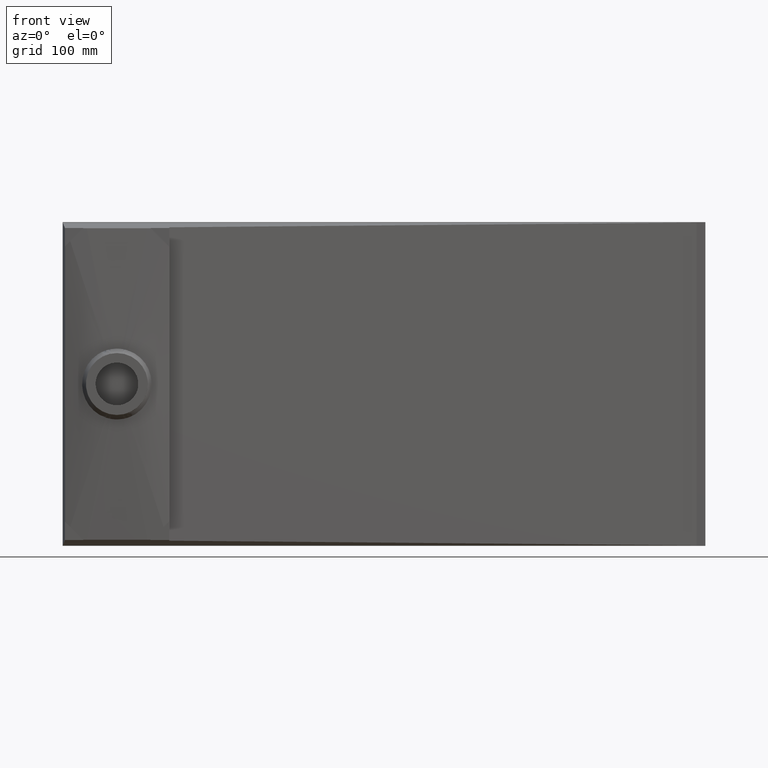
[diagram: clean part render]
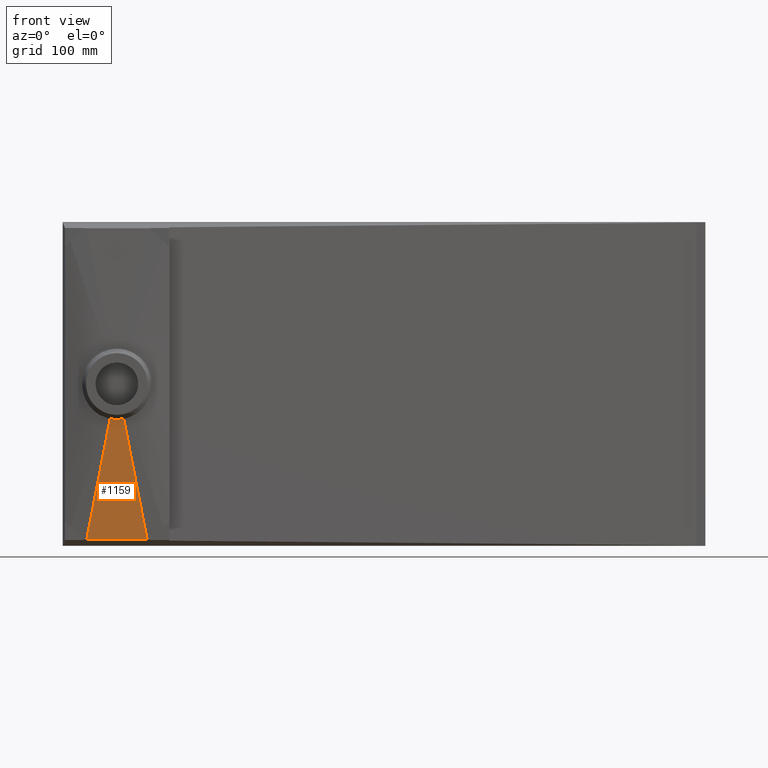
[diagram: same view with one face highlighted and labeled with its STEP entity id]
A machine part, front view. The second image highlights one B-rep face of the part: STEP entity #1159.
In plain terms, the highlighted face is a freeform B-spline surface patch.
Its self-contained STEP definition (entity closure, byte-faithful):
#31 = VERTEX_POINT ( 'NONE', #5527 ) ;
#86 = CARTESIAN_POINT ( 'NONE',  ( 58.27242842044989900, -120.6869095801091600, -217.1680085877463900 ) ) ;
#90 = ORIENTED_EDGE ( 'NONE', *, *, #1474, .T. ) ;
#139 = CARTESIAN_POINT ( 'NONE',  ( 60.39061343607895100, -120.2838554742528700, -227.8837113006445600 ) ) ;
#165 = CARTESIAN_POINT ( 'NONE',  ( 62.50879845170801000, -119.8808013683965800, -238.5994140135427400 ) ) ;
#179 = CARTESIAN_POINT ( 'NONE',  ( 64.62880069256485200, -119.4777557249144700, -249.3147570761731500 ) ) ;
#207 = CARTESIAN_POINT ( 'NONE',  ( 66.74929581478254200, -119.0747133391754200, -260.0300026279833800 ) ) ;
#278 = FACE_OUTER_BOUND ( 'NONE', #1535, .T. ) ;
#305 = CARTESIAN_POINT ( 'NONE',  ( 70.99028605921793700, -118.2686285676973300, -281.4604937316038300 ) ) ;
#325 = CARTESIAN_POINT ( 'NONE',  ( 75.23342660546524000, -117.4625567152831700, -302.8905593744715400 ) ) ;
#354 = CARTESIAN_POINT ( 'NONE',  ( 79.47690451052945100, -116.6564876518917100, -324.3205582958725000 ) ) ;
#387 = CARTESIAN_POINT ( 'NONE',  ( 53.46918231261663800, -121.4930233680558700, -195.7975546323019700 ) ) ;
#412 = CARTESIAN_POINT ( 'NONE',  ( 55.39868619076918300, -121.0899522341513700, -206.5096290073102000 ) ) ;
#460 = B_SPLINE_CURVE_WITH_KNOTS ( 'NONE', 3,
 ( #7109, #1068, #1274, #1338, #1353, #1398, #1441, #1537 ),
 .UNSPECIFIED., .F., .F.,
 ( 4, 2, 2, 4 ),
 ( 2.860979249076398400E-017, 0.03237025230404994700, 0.06474050460809986600, 0.1294810092161997100 ),
 .UNSPECIFIED. ) ;
#500 = CARTESIAN_POINT ( 'NONE',  ( 57.33896868213641800, -120.6868904350241500, -217.2197450914810900 ) ) ;
#531 = CARTESIAN_POINT ( 'NONE',  ( 59.27964585364685500, -120.2838388825114700, -227.9297899783361200 ) ) ;
#556 = CARTESIAN_POINT ( 'NONE',  ( 61.22032302515727800, -119.8807873299987800, -238.6398348651911800 ) ) ;
#576 = B_SPLINE_CURVE_WITH_KNOTS ( 'NONE', 3,
 ( #4670, #4686, #4623, #4596 ),
 .UNSPECIFIED., .F., .F.,
 ( 4, 4 ),
 ( 3.469446951953614200E-017, 6.752364699352624800E-006 ),
 .UNSPECIFIED. ) ;
#582 = CARTESIAN_POINT ( 'NONE',  ( 63.16282262938038600, -119.4777431748528300, -249.3495489463336400 ) ) ;
#617 = CARTESIAN_POINT ( 'NONE',  ( 33.75334957122907300, -119.4777108936608600, -249.4083271083769900 ) ) ;
#636 = EDGE_CURVE ( 'NONE', #3623, #3387, #2864, .T. ) ;
#639 = CARTESIAN_POINT ( 'NONE',  ( 65.10581571659038500, -119.0747019822173100, -260.0591735004764500 ) ) ;
#690 = CARTESIAN_POINT ( 'NONE',  ( 32.16195273734442100, -119.0746740831565500, -260.1084321711685400 ) ) ;
#746 = CARTESIAN_POINT ( 'NONE',  ( 28.97915906957512500, -118.2686004621479600, -281.5086422967515900 ) ) ;
#804 = CARTESIAN_POINT ( 'NONE',  ( 68.99180189101036800, -118.2686195969462700, -281.4784226087621200 ) ) ;
#814 = CARTESIAN_POINT ( 'NONE',  ( 39.88850133673389600, -121.4643722782131800, -196.5059985455536700 ) ) ;
#838 = CARTESIAN_POINT ( 'NONE',  ( 72.87994208160381500, -117.4625488497863700, -302.8972808718407400 ) ) ;
#893 = CARTESIAN_POINT ( 'NONE',  ( 76.76841957174504200, -116.6564806835065600, -324.3160779711716400 ) ) ;
#971 = CARTESIAN_POINT ( 'NONE',  ( 52.88346048968946200, -121.4929772734469500, -195.8566843599673700 ) ) ;
#1068 = CARTESIAN_POINT ( 'NONE',  ( 37.82813601438690700, -121.0662600955545500, -207.0901806747899300 ) ) ;
#1084 = CARTESIAN_POINT ( 'NONE',  ( 54.63781055011708800, -121.0899126356505200, -206.5629852874474200 ) ) ;
#1140 = CARTESIAN_POINT ( 'NONE',  ( 56.40140317816419500, -120.6868583417548300, -217.2677749597134200 ) ) ;
#1159 = ADVANCED_FACE ( 'NONE', ( #278 ), #7212, .T. ) ;
#1207 = CARTESIAN_POINT ( 'NONE',  ( 58.16533330598404900, -120.2838115929658500, -227.9725097550519000 ) ) ;
#1263 = CARTESIAN_POINT ( 'NONE',  ( 59.92926343380390400, -119.8807648441768700, -238.6772445503903800 ) ) ;
#1274 = CARTESIAN_POINT ( 'NONE',  ( 35.77291574628654300, -120.6681289335231400, -217.6752400600313700 ) ) ;
#1291 = CARTESIAN_POINT ( 'NONE',  ( 61.69475573656411900, -119.4777240538014400, -249.3817240947630900 ) ) ;
#1310 = VERTEX_POINT ( 'NONE', #2291 ) ;
#1328 = CARTESIAN_POINT ( 'NONE',  ( 63.46067096183616500, -119.0746855704200400, -260.0861345656563200 ) ) ;
#1338 = CARTESIAN_POINT ( 'NONE',  ( 31.66410445847867500, -119.8717980102496600, -238.8456729744937900 ) ) ;
#1353 = CARTESIAN_POINT ( 'NONE',  ( 29.61191646178065900, -119.4736051915596000, -249.4313193728107200 ) ) ;
#1363 = CARTESIAN_POINT ( 'NONE',  ( 66.99250141238025000, -118.2686086036572600, -281.4949555074428000 ) ) ;
#1390 = CARTESIAN_POINT ( 'NONE',  ( 70.52617800636404900, -117.4625407718825600, -302.9034748891813800 ) ) ;
#1398 = CARTESIAN_POINT ( 'NONE',  ( 23.45727829300818700, -118.2789937102462400, -281.1886293396976800 ) ) ;
#1417 = CARTESIAN_POINT ( 'NONE',  ( 74.06014362213800000, -116.6564749186180200, -324.3119470839110400 ) ) ;
#1441 = CARTESIAN_POINT ( 'NONE',  ( 19.35693306919069200, -117.4825426958536100, -302.3607000436348400 ) ) ;
#1446 = CARTESIAN_POINT ( 'NONE',  ( 52.29797629231845200, -121.4929446401845800, -195.9060359901318100 ) ) ;
#1474 = EDGE_CURVE ( 'NONE', #31, #1310, #460, .T. ) ;
#1475 = CARTESIAN_POINT ( 'NONE',  ( 53.87643901233170900, -121.0898863080052200, -206.6076318589539100 ) ) ;
#1520 = CARTESIAN_POINT ( 'NONE',  ( 55.46325481168835800, -120.6868365421940300, -217.3079864324681400 ) ) ;
#1535 = EDGE_LOOP ( 'NONE', ( #7019, #5279, #90, #3246, #6272, #5126 ) ) ;
#1537 = CARTESIAN_POINT ( 'NONE',  ( 15.25705177152247800, -116.6860818408072300, -323.5328601073550800 ) ) ;
#1544 = CARTESIAN_POINT ( 'NONE',  ( 57.05037333413590500, -120.2837929642676000, -228.0082962417112600 ) ) ;
#1586 = CARTESIAN_POINT ( 'NONE',  ( 64.99275279681720000, -118.2686003460760000, -281.5088374291603900 ) ) ;
#1615 = CARTESIAN_POINT ( 'NONE',  ( 68.17224029823020700, -117.4625342732194800, -302.9086774036987300 ) ) ;
#1643 = CARTESIAN_POINT ( 'NONE',  ( 71.35198847812742400, -116.6564698228723200, -324.3084786915947000 ) ) ;
#1676 = CARTESIAN_POINT ( 'NONE',  ( 51.71249209494743600, -121.4929120069222100, -195.9553876202962800 ) ) ;
#1699 = CARTESIAN_POINT ( 'NONE',  ( 53.11506747454633600, -121.0898599803599300, -206.6522784304604000 ) ) ;
#1725 = CARTESIAN_POINT ( 'NONE',  ( 54.52510644521252200, -120.6868147426332300, -217.3481979052228900 ) ) ;
#1768 = EDGE_CURVE ( 'NONE', #3387, #7582, #7450, .T. ) ;
#1778 = CARTESIAN_POINT ( 'NONE',  ( 55.93541336228776800, -120.2837743355693800, -228.0440827283706300 ) ) ;
#1803 = CARTESIAN_POINT ( 'NONE',  ( 57.34572027936300700, -119.8807339285055100, -238.7399675515183600 ) ) ;
#1835 = CARTESIAN_POINT ( 'NONE',  ( 58.75728599417231400, -119.4776973582796300, -249.4356886797181400 ) ) ;
#1845 = CARTESIAN_POINT ( 'NONE',  ( 78.74294822847747400, -116.6860818408072300, -323.5328601073550200 ) ) ;
#1870 = CARTESIAN_POINT ( 'NONE',  ( 60.16919205653292100, -119.0746622683513200, -260.1313655701047200 ) ) ;
#1944 = CARTESIAN_POINT ( 'NONE',  ( 62.99300418125414300, -118.2685920884947400, -281.5227193508779900 ) ) ;
#1968 = CARTESIAN_POINT ( 'NONE',  ( 65.81830259009638000, -117.4625277745564100, -302.9138799182161400 ) ) ;
#1996 = CARTESIAN_POINT ( 'NONE',  ( 68.64383333411683500, -116.6564647271266300, -324.3050102992783100 ) ) ;
#2024 = CARTESIAN_POINT ( 'NONE',  ( 51.12520646016135100, -121.4928844328330800, -195.9966864220814400 ) ) ;
#2053 = CARTESIAN_POINT ( 'NONE',  ( 52.35207164376046100, -121.0898377979046500, -206.6896375406776900 ) ) ;
#2072 = CARTESIAN_POINT ( 'NONE',  ( 53.58549500429146000, -120.6867963801942000, -217.3818457121912800 ) ) ;
#2123 = CARTESIAN_POINT ( 'NONE',  ( 54.81915215017289700, -120.2837586537141600, -228.0740275481337300 ) ) ;
#2151 = CARTESIAN_POINT ( 'NONE',  ( 56.05280929605433500, -119.8807209272341200, -238.7662093840761800 ) ) ;
#2160 = CARTESIAN_POINT ( 'NONE',  ( 57.28757156276761700, -119.4776861362850700, -249.4582661131021000 ) ) ;
#2179 = CARTESIAN_POINT ( 'NONE',  ( 58.52263246739284600, -119.0746524768002000, -260.1502890487248600 ) ) ;
#2243 = CARTESIAN_POINT ( 'NONE',  ( 60.99275427664329600, -118.2685851578304700, -281.5343349199703200 ) ) ;
#2268 = CARTESIAN_POINT ( 'NONE',  ( 63.46418044103974400, -117.4625223233588000, -302.9182331729811000 ) ) ;
#2291 = CARTESIAN_POINT ( 'NONE',  ( 15.25705177152247800, -116.6860818408072300, -323.5328601073550800 ) ) ;
#2294 = CARTESIAN_POINT ( 'NONE',  ( 65.93581037616472400, -116.6564604562592300, -324.3021083759063600 ) ) ;
#2352 = CARTESIAN_POINT ( 'NONE',  ( 50.53670691566245000, -121.4928622219819400, -196.0298124054992600 ) ) ;
#2407 = CARTESIAN_POINT ( 'NONE',  ( 51.58798400992554900, -121.0898199472278200, -206.7196025162605500 ) ) ;
#2480 = CARTESIAN_POINT ( 'NONE',  ( 54.04757892414527000, -121.4930543155841500, -195.7343224683213500 ) ) ;
#2513 = CARTESIAN_POINT ( 'NONE',  ( 56.15464419814297500, -121.0899741731473700, -206.4522268773936300 ) ) ;
#2537 = CARTESIAN_POINT ( 'NONE',  ( 52.64490056062747700, -120.6867816061315300, -217.4088338667653500 ) ) ;
#2562 = CARTESIAN_POINT ( 'NONE',  ( 53.70201712908001200, -120.2837460396350500, -228.0980454987640700 ) ) ;
#2664 = CARTESIAN_POINT ( 'NONE',  ( 54.75913369753255500, -119.8807104731385600, -238.7872571307627500 ) ) ;
#2691 = CARTESIAN_POINT ( 'NONE',  ( 55.81719997661460300, -119.4776771146210300, -249.4763747232162000 ) ) ;
#2800 = CARTESIAN_POINT ( 'NONE',  ( 56.87552279918374200, -119.0746446066391100, -260.1654669225308100 ) ) ;
#2846 = CARTESIAN_POINT ( 'NONE',  ( 58.99216844432201900, -118.2685795906752600, -281.5436513211599800 ) ) ;
#2864 = B_SPLINE_CURVE_WITH_KNOTS ( 'NONE', 3,
 ( #4321, #4741, #4295, #4277 ),
 .UNSPECIFIED., .F., .F.,
 ( 4, 4 ),
 ( 1.347289491009623300E-016, 5.597194698282978900E-006 ),
 .UNSPECIFIED. ) ;
#2871 = CARTESIAN_POINT ( 'NONE',  ( 61.10993472190813900, -117.4625179461608400, -302.9217247845953100 ) ) ;
#2965 = CARTESIAN_POINT ( 'NONE',  ( 63.22787599145855400, -116.6564570285034800, -324.2997809325403900 ) ) ;
#3015 = CARTESIAN_POINT ( 'NONE',  ( 49.35970782666463900, -121.4928178002796500, -196.0960643723348900 ) ) ;
#3046 = CARTESIAN_POINT ( 'NONE',  ( 50.05980874225571900, -121.0897842458741600, -206.7795324674262900 ) ) ;
#3076 = CARTESIAN_POINT ( 'NONE',  ( 50.76371167329949700, -120.6867520580061800, -217.4628101759134900 ) ) ;
#3106 = CARTESIAN_POINT ( 'NONE',  ( 51.46774708689424200, -120.2837208114768000, -228.1460814000247400 ) ) ;
#3165 = CARTESIAN_POINT ( 'NONE',  ( 52.17178250048898700, -119.8806895649474200, -238.8293526241359900 ) ) ;
#3246 = ORIENTED_EDGE ( 'NONE', *, *, #6769, .T. ) ;
#3272 = CARTESIAN_POINT ( 'NONE',  ( 52.87645680430857500, -119.4776590712929500, -249.5125919434444500 ) ) ;
#3327 = CARTESIAN_POINT ( 'NONE',  ( 53.58130346276554000, -119.0746288663169100, -260.1958226701427200 ) ) ;
#3358 = CARTESIAN_POINT ( 'NONE',  ( 54.99099677967947000, -118.2685684563648300, -281.5622841235393100 ) ) ;
#3387 = VERTEX_POINT ( 'NONE', #5823 ) ;
#3419 = CARTESIAN_POINT ( 'NONE',  ( 56.40144328364493700, -117.4625091917649400, -302.9287080078237900 ) ) ;
#3476 = CARTESIAN_POINT ( 'NONE',  ( 57.81200722204623300, -116.6564501729920100, -324.2951260458083300 ) ) ;
#3541 = CARTESIAN_POINT ( 'NONE',  ( 48.17785171695520300, -121.4927949300696200, -196.1296236645968300 ) ) ;
#3585 = CARTESIAN_POINT ( 'NONE',  ( 48.52726556934011600, -121.0897659170112200, -206.8098852803624900 ) ) ;
#3607 = CARTESIAN_POINT ( 'NONE',  ( 48.87859015814729000, -120.6867369008836400, -217.4901473408025900 ) ) ;
#3623 = VERTEX_POINT ( 'NONE', #7970 ) ;
#3632 = CARTESIAN_POINT ( 'NONE',  ( 49.22998132133327000, -120.2837078825417600, -228.1704094166567000 ) ) ;
#3657 = CARTESIAN_POINT ( 'NONE',  ( 49.58137248451925700, -119.8806788641998800, -238.8506714925108000 ) ) ;
#3713 = CARTESIAN_POINT ( 'NONE',  ( 49.93308472449462700, -119.4776498441073900, -249.5309336430407000 ) ) ;
#3767 = CARTESIAN_POINT ( 'NONE',  ( 52.39649277419489700, -116.6564466928091300, -324.2927690274532900 ) ) ;
#3791 = CARTESIAN_POINT ( 'NONE',  ( 46.99584944306931800, -121.4927949834252100, -196.1295449269937900 ) ) ;
#3845 = CARTESIAN_POINT ( 'NONE',  ( 46.99461816613145300, -121.0897659598751400, -206.8098140637878300 ) ) ;
#3949 = CARTESIAN_POINT ( 'NONE',  ( 46.99338015596517000, -120.6867369363304800, -217.4900831997997300 ) ) ;
#4007 = CARTESIAN_POINT ( 'NONE',  ( 46.99214191119769200, -120.2837079127896800, -228.1703523357845700 ) ) ;
#4039 = CARTESIAN_POINT ( 'NONE',  ( 46.99090366643021400, -119.8806788892488800, -238.8506214717693900 ) ) ;
#4078 = CARTESIAN_POINT ( 'NONE',  ( 46.98966429022269200, -119.4776498657111600, -249.5308906076228900 ) ) ;
#4172 = CARTESIAN_POINT ( 'NONE',  ( 46.98842460878542200, -119.0746208421746400, -260.2111597434409300 ) ) ;
#4267 = CARTESIAN_POINT ( 'NONE',  ( 46.98594524591089800, -118.2685627951015900, -281.5716980150770000 ) ) ;
#4277 = CARTESIAN_POINT ( 'NONE',  ( 54.11036860234494800, -121.4643678225196200, -196.5062379612435000 ) ) ;
#4295 = CARTESIAN_POINT ( 'NONE',  ( 54.10854375427030800, -121.4643605626115700, -196.5066263310084200 ) ) ;
#4321 = CARTESIAN_POINT ( 'NONE',  ( 54.10489396846166000, -121.4643460582107100, -196.5074026494639300 ) ) ;
#4322 = CARTESIAN_POINT ( 'NONE',  ( 46.98346454918560500, -117.4625047480332300, -302.9322362865583500 ) ) ;
#4376 = CARTESIAN_POINT ( 'NONE',  ( 46.98098364449117500, -116.6564467009658900, -324.2927745580155900 ) ) ;
#4400 = CARTESIAN_POINT ( 'NONE',  ( 45.81384716918342500, -121.4927950367808200, -196.1294661893907400 ) ) ;
#4424 = CARTESIAN_POINT ( 'NONE',  ( 37.92902715042111300, -119.8807210980753800, -238.7658647739629900 ) ) ;
#4478 = CARTESIAN_POINT ( 'NONE',  ( 45.46197076292278200, -121.0897660027390500, -206.8097428472131600 ) ) ;
#4491 = CARTESIAN_POINT ( 'NONE',  ( 51.75839573602739600, -121.4576650415703800, -196.9041362424482300 ) ) ;
#4501 = CARTESIAN_POINT ( 'NONE',  ( 54.11036860234494800, -121.4643678225196200, -196.5062379612435000 ) ) ;
#4510 = CARTESIAN_POINT ( 'NONE',  ( 36.69178202413651500, -119.4776862837388500, -249.4579696243728500 ) ) ;
#4523 = CARTESIAN_POINT ( 'NONE',  ( 52.93813546216510700, -121.4605221301878000, -196.7335277516855600 ) ) ;
#4538 = CARTESIAN_POINT ( 'NONE',  ( 49.38394322891878800, -121.4537759167502600, -197.1322910598681500 ) ) ;
#4545 = CARTESIAN_POINT ( 'NONE',  ( 35.45423767231414300, -119.0746526054520900, -260.1500405441238400 ) ) ;
#4562 = CARTESIAN_POINT ( 'NONE',  ( 48.19051822885634800, -121.4528023365919400, -197.1893683902271200 ) ) ;
#4586 = CARTESIAN_POINT ( 'NONE',  ( 45.10817015378305700, -120.6867369717773100, -217.4900190587968600 ) ) ;
#4596 = CARTESIAN_POINT ( 'NONE',  ( 39.89510582860490500, -121.4643460191269800, -196.5074036884712100 ) ) ;
#4597 = CARTESIAN_POINT ( 'NONE',  ( 45.80740920096189900, -121.4528036637507300, -197.1892968319143300 ) ) ;
#4606 = CARTESIAN_POINT ( 'NONE',  ( 44.61304845706256100, -121.4537811512110200, -197.1320338725123200 ) ) ;
#4623 = CARTESIAN_POINT ( 'NONE',  ( 39.89290428782185700, -121.4643547646750400, -196.5069355118322400 ) ) ;
#4638 = CARTESIAN_POINT ( 'NONE',  ( 44.75430250106212100, -120.2837079430376000, -228.1702952549124200 ) ) ;
#4646 = CARTESIAN_POINT ( 'NONE',  ( 39.88850133673389600, -121.4643722782131800, -196.5059985455536700 ) ) ;
#4670 = CARTESIAN_POINT ( 'NONE',  ( 39.88850133673389600, -121.4643722782131800, -196.5059985455536700 ) ) ;
#4686 = CARTESIAN_POINT ( 'NONE',  ( 39.89070279051190900, -121.4643635177040000, -196.5064671308580000 ) ) ;
#4706 = CARTESIAN_POINT ( 'NONE',  ( 42.24008374995628400, -121.4576678675725000, -196.9039410587477900 ) ) ;
#4727 = CARTESIAN_POINT ( 'NONE',  ( 41.06071990659630400, -121.4605243470860600, -196.7333485280645100 ) ) ;
#4728 = EDGE_CURVE ( 'NONE', #4988, #3623, #6797, .T. ) ;
#4741 = CARTESIAN_POINT ( 'NONE',  ( 54.10671887629807500, -121.4643533078418500, -196.5070145604162000 ) ) ;
#4774 = CARTESIAN_POINT ( 'NONE',  ( 44.40043484834117700, -119.8806789142978900, -238.8505714510279700 ) ) ;
#4803 = CARTESIAN_POINT ( 'NONE',  ( 44.04624385595076300, -119.4776498873149400, -249.5308475722051200 ) ) ;
#4849 = CARTESIAN_POINT ( 'NONE',  ( 43.69196563589790800, -119.0746208610093500, -260.2111236731737400 ) ) ;
#4870 = CARTESIAN_POINT ( 'NONE',  ( 42.98340919579221300, -118.2685628083981600, -281.5716758751109400 ) ) ;
#4958 = CARTESIAN_POINT ( 'NONE',  ( 42.27447157169761000, -117.4625047584710600, -302.9322279887267700 ) ) ;
#4988 = VERTEX_POINT ( 'NONE', #1845 ) ;
#5029 = CARTESIAN_POINT ( 'NONE',  ( 41.56547451478744600, -116.6564467091226600, -324.2927800885778400 ) ) ;
#5060 = CARTESIAN_POINT ( 'NONE',  ( 44.63200351914682800, -121.4928180122972100, -196.0957516043320400 ) ) ;
#5085 = CARTESIAN_POINT ( 'NONE',  ( 43.92943860013889400, -121.0897844158283000, -206.7792495680946300 ) ) ;
#5126 = ORIENTED_EDGE ( 'NONE', *, *, #636, .T. ) ;
#5165 = CARTESIAN_POINT ( 'NONE',  ( 43.22305851387744700, -120.6867521986086000, -217.4625553821888400 ) ) ;
#5204 = CARTESIAN_POINT ( 'NONE',  ( 42.51654547801906100, -120.2837209314428300, -228.1458546507294000 ) ) ;
#5261 = CARTESIAN_POINT ( 'NONE',  ( 41.81003244216068300, -119.8806896642770600, -238.8291539192699400 ) ) ;
#5279 = ORIENTED_EDGE ( 'NONE', *, *, #8200, .T. ) ;
#5289 = CARTESIAN_POINT ( 'NONE',  ( 41.10287830091690600, -119.4776591569700100, -249.5124209868937200 ) ) ;
#5313 = CARTESIAN_POINT ( 'NONE',  ( 40.39555120660757100, -119.0746289410212900, -260.1956793820493200 ) ) ;
#5350 = CARTESIAN_POINT ( 'NONE',  ( 38.98089701798890900, -118.2685685091238500, -281.5621961723604700 ) ) ;
#5426 = CARTESIAN_POINT ( 'NONE',  ( 37.56548702833724500, -117.4625092332103800, -302.9286750445468800 ) ) ;
#5447 = CARTESIAN_POINT ( 'NONE',  ( 36.14995919602593900, -116.6564502054083800, -324.2951480160367100 ) ) ;
#5524 = CARTESIAN_POINT ( 'NONE',  ( 43.45502718863202300, -121.4928625343044200, -196.0293465855041000 ) ) ;
#5527 = CARTESIAN_POINT ( 'NONE',  ( 39.89510582860490500, -121.4643460191269800, -196.5074036884712100 ) ) ;
#5554 = CARTESIAN_POINT ( 'NONE',  ( 42.40128380259131500, -121.0898201982403700, -206.7191811465066800 ) ) ;
#5584 = CARTESIAN_POINT ( 'NONE',  ( 41.34188805677502600, -120.6867818138815700, -217.4084543572886300 ) ) ;
#5650 = CARTESIAN_POINT ( 'NONE',  ( 40.28229181888799800, -120.2837462170120800, -228.0977077565103200 ) ) ;
#5709 = CARTESIAN_POINT ( 'NONE',  ( 39.22269558100096300, -119.8807106201426200, -238.7869611557319700 ) ) ;
#5733 = CARTESIAN_POINT ( 'NONE',  ( 38.16214744972997900, -119.4776772414825800, -249.4761200785465000 ) ) ;
#5766 = CARTESIAN_POINT ( 'NONE',  ( 37.10134218374528800, -119.0746447173084900, -260.1652534900990200 ) ) ;
#5823 = CARTESIAN_POINT ( 'NONE',  ( 54.11036860234494800, -121.4643678225196200, -196.5062379612435000 ) ) ;
#5829 = CARTESIAN_POINT ( 'NONE',  ( 34.97973165177590700, -118.2685796689603000, -281.5435203132040000 ) ) ;
#5883 = CARTESIAN_POINT ( 'NONE',  ( 32.85699790693531200, -117.4625180077129200, -302.9216756852850400 ) ) ;
#5916 = CARTESIAN_POINT ( 'NONE',  ( 30.73408876592230100, -116.6564570767046500, -324.2998136612361600 ) ) ;
#5945 = CARTESIAN_POINT ( 'NONE',  ( 42.86653902337461400, -121.4928847953080400, -195.9961440760901300 ) ) ;
#5967 = CARTESIAN_POINT ( 'NONE',  ( 41.63720640381753000, -121.0898380894464000, -206.6891469357127600 ) ) ;
#6001 = CARTESIAN_POINT ( 'NONE',  ( 40.40130282822382000, -120.6867966215180400, -217.3814038448385600 ) ) ;
#6026 = CARTESIAN_POINT ( 'NONE',  ( 39.16516498932247000, -120.2837588597967100, -228.0736343094007700 ) ) ;
#6051 = CARTESIAN_POINT ( 'NONE',  ( 32.97914896866939900, -118.2685852488785200, -281.5341823836257600 ) ) ;
#6081 = CARTESIAN_POINT ( 'NONE',  ( 30.50275334623433900, -117.4625223949641800, -302.9181760056541200 ) ) ;
#6163 = CARTESIAN_POINT ( 'NONE',  ( 28.02615355087047900, -116.6564605123527900, -324.3021464838358800 ) ) ;
#6215 = CARTESIAN_POINT ( 'NONE',  ( 42.27926752032211500, -121.4929124183108100, -195.9547693076444800 ) ) ;
#6231 = CARTESIAN_POINT ( 'NONE',  ( 54.10489396846166000, -121.4643460582107100, -196.5074026494639300 ) ) ;
#6238 = CARTESIAN_POINT ( 'NONE',  ( 56.17186341148163800, -121.0662602063160700, -207.0901777301439500 ) ) ;
#6249 = CARTESIAN_POINT ( 'NONE',  ( 58.22708405446711300, -120.6681289721190900, -217.6752390339497100 ) ) ;
#6259 = CARTESIAN_POINT ( 'NONE',  ( 62.33589550206261300, -119.8717980179161800, -238.8456727706921500 ) ) ;
#6266 = CARTESIAN_POINT ( 'NONE',  ( 64.38808346930378000, -119.4736052049325300, -249.4313190173048200 ) ) ;
#6269 = CARTESIAN_POINT ( 'NONE',  ( 40.87422330162406300, -121.0898603116444400, -206.6517190885779500 ) ) ;
#6272 = ORIENTED_EDGE ( 'NONE', *, *, #4728, .T. ) ;
#6279 = CARTESIAN_POINT ( 'NONE',  ( 70.54272166826510200, -118.2789937177692100, -281.1886291397142400 ) ) ;
#6300 = CARTESIAN_POINT ( 'NONE',  ( 39.46170285054010700, -120.6868150168949500, -217.3476941283990700 ) ) ;
#6341 = CARTESIAN_POINT ( 'NONE',  ( 78.74294822847747400, -116.6860818408072300, -323.5328601073550200 ) ) ;
#6353 = CARTESIAN_POINT ( 'NONE',  ( 38.04891397025438900, -120.2837745698458500, -228.0436343912968200 ) ) ;
#6386 = CARTESIAN_POINT ( 'NONE',  ( 74.64306691116857500, -117.4825426996691700, -302.3606999422060000 ) ) ;
#6408 = CARTESIAN_POINT ( 'NONE',  ( 36.63612508996867200, -119.8807341227967400, -238.7395746541945700 ) ) ;
#6436 = CARTESIAN_POINT ( 'NONE',  ( 35.22207526289458500, -119.4776975260059700, -249.4353506459590300 ) ) ;
#6460 = CARTESIAN_POINT ( 'NONE',  ( 33.80768450442860700, -119.0746624147194400, -260.1310822438319400 ) ) ;
#6496 = CARTESIAN_POINT ( 'NONE',  ( 30.97890298749666000, -118.2685921921463900, -281.5225454395778100 ) ) ;
#6522 = CARTESIAN_POINT ( 'NONE',  ( 28.14863264060680200, -117.4625278560996800, -302.9138147406956700 ) ) ;
#6559 = CARTESIAN_POINT ( 'NONE',  ( 25.31812955837565900, -116.6564647910333200, -324.3050537488242100 ) ) ;
#6608 = CARTESIAN_POINT ( 'NONE',  ( 41.69380020372255300, -121.4929450988786800, -195.9053422750472700 ) ) ;
#6614 = CARTESIAN_POINT ( 'NONE',  ( 40.11286698507699100, -121.0898866780717100, -206.6070042807393200 ) ) ;
#6660 = CARTESIAN_POINT ( 'NONE',  ( 38.52356819451475900, -120.6868368486132100, -217.3074211965765100 ) ) ;
#6738 = CARTESIAN_POINT ( 'NONE',  ( 36.93396619235348100, -120.2837932261171400, -228.0077932059834300 ) ) ;
#6765 = CARTESIAN_POINT ( 'NONE',  ( 35.34436419019219500, -119.8807496036210700, -238.7081652153903800 ) ) ;
#6769 = EDGE_CURVE ( 'NONE', #1310, #4988, #7615, .T. ) ;
#6797 = B_SPLINE_CURVE_WITH_KNOTS ( 'NONE', 3,
 ( #6341, #6386, #6279, #6266, #6259, #6249, #6238, #6231 ),
 .UNSPECIFIED., .F., .F.,
 ( 4, 2, 2, 4 ),
 ( 0.0000000000000000000, 0.06474051035364132600, 0.09711076553046199500, 0.1294810207072826500 ),
 .UNSPECIFIED. ) ;
#6820 = CARTESIAN_POINT ( 'NONE',  ( 50.28488358167294300, -119.0746208233399300, -260.2111958137081700 ) ) ;
#6879 = CARTESIAN_POINT ( 'NONE',  ( 50.98848129602957600, -118.2685627818050200, -281.5717201550431200 ) ) ;
#6947 = CARTESIAN_POINT ( 'NONE',  ( 51.69245752667360000, -117.4625047375954000, -302.9322445843899300 ) ) ;
#6971 = CARTESIAN_POINT ( 'NONE',  ( 25.79469666089201100, -117.4625343645675700, -302.9086042741192300 ) ) ;
#6992 = CARTESIAN_POINT ( 'NONE',  ( 22.60997317563347100, -116.6564698945006300, -324.3085274453600800 ) ) ;
#7016 = CARTESIAN_POINT ( 'NONE',  ( 41.10833288712299800, -121.4929777794465300, -195.8559152424500400 ) ) ;
#7019 = ORIENTED_EDGE ( 'NONE', *, *, #1768, .T. ) ;
#7064 = CARTESIAN_POINT ( 'NONE',  ( 39.35151066852991900, -121.0899130444989700, -206.5622894729006600 ) ) ;
#7106 = CARTESIAN_POINT ( 'NONE',  ( 37.58543353848941100, -120.6868586803314700, -217.2671482647539300 ) ) ;
#7109 = CARTESIAN_POINT ( 'NONE',  ( 39.89510582860490500, -121.4643460191269800, -196.5074036884712100 ) ) ;
#7131 = CARTESIAN_POINT ( 'NONE',  ( 35.81901841445257200, -120.2838118823884300, -227.9719520206700500 ) ) ;
#7140 = CARTESIAN_POINT ( 'NONE',  ( 34.05260329041572500, -119.8807650844454000, -238.6767557765861600 ) ) ;
#7169 = CARTESIAN_POINT ( 'NONE',  ( 32.28462387956356100, -119.4777242613157400, -249.3813035707949300 ) ) ;
#7192 = CARTESIAN_POINT ( 'NONE',  ( 30.51622097026023500, -119.0746857515936800, -260.0857820985050900 ) ) ;
#7202 = CARTESIAN_POINT ( 'NONE',  ( 26.97941515165358700, -118.2686087321495300, -281.4947391539253700 ) ) ;
#7212 = B_SPLINE_SURFACE_WITH_KNOTS ( 'NONE', 3, 3, ( 
 ( #8124, #7868, #7824, #7797, #7789, #7769, #7729, #7705, #7624, #7573 ),
 ( #7546, #7526, #7506, #7476, #7448, #7416, #7387, #7357, #7308, #7277 ),
 ( #7252, #7226, #7202, #7192, #7169, #7140, #7131, #7106, #7064, #7016 ),
 ( #6992, #6971, #746, #690, #617, #6765, #6738, #6660, #6614, #6608 ),
 ( #6559, #6522, #6496, #6460, #6436, #6408, #6353, #6300, #6269, #6215 ),
 ( #6163, #6081, #6051, #4545, #4510, #4424, #6026, #6001, #5967, #5945 ),
 ( #5916, #5883, #5829, #5766, #5733, #5709, #5650, #5584, #5554, #5524 ),
 ( #5447, #5426, #5350, #5313, #5289, #5261, #5204, #5165, #5085, #5060 ),
 ( #5029, #4958, #4870, #4849, #4803, #4774, #4638, #4586, #4478, #4400 ),
 ( #4376, #4322, #4267, #4172, #4078, #4039, #4007, #3949, #3845, #3791 ),
 ( #3767, #6947, #6879, #6820, #3713, #3657, #3632, #3607, #3585, #3541 ),
 ( #3476, #3419, #3358, #3327, #3272, #3165, #3106, #3076, #3046, #3015 ),
 ( #2965, #2871, #2846, #2800, #2691, #2664, #2562, #2537, #2407, #2352 ),
 ( #2294, #2268, #2243, #2179, #2160, #2151, #2123, #2072, #2053, #2024 ),
 ( #1996, #1968, #1944, #1870, #1835, #1803, #1778, #1725, #1699, #1676 ),
 ( #1643, #1615, #1586, #8037, #8008, #7980, #1544, #1520, #1475, #1446 ),
 ( #1417, #1390, #1363, #1328, #1291, #1263, #1207, #1140, #1084, #971 ),
 ( #893, #838, #804, #639, #582, #556, #531, #500, #412, #387 ),
 ( #354, #325, #305, #207, #179, #165, #139, #86, #2513, #2480 ) ),
 .UNSPECIFIED., .F., .F., .F.,
 ( 4, 3, 3, 3, 3, 3, 4 ),
 ( 4, 3, 3, 4 ),
 ( -0.01236190615784475900, 0.1156536500840954200, 0.2436692063260356100, 0.4997003188099160000, 0.7557314312937963900, 0.8837469875357365500, 1.011762543777676700 ),
 ( -0.06728818452304008400, 0.4163466437149550000, 0.6581640578339524900, 0.8999814719529500900 ),
 .UNSPECIFIED. ) ;
#7226 = CARTESIAN_POINT ( 'NONE',  ( 23.44076068117721700, -117.4625408730354600, -302.9033938075428400 ) ) ;
#7252 = CARTESIAN_POINT ( 'NONE',  ( 19.90181679289128200, -116.6564749979679300, -324.3120011418960200 ) ) ;
#7277 = CARTESIAN_POINT ( 'NONE',  ( 40.52269362169865700, -121.4930238056627700, -195.7966664306274000 ) ) ;
#7308 = CARTESIAN_POINT ( 'NONE',  ( 38.59069573748215000, -121.0899525435025500, -206.5088227241852800 ) ) ;
#7357 = CARTESIAN_POINT ( 'NONE',  ( 36.64792008453130000, -120.6868907050170900, -217.2190183890326400 ) ) ;
#7387 = CARTESIAN_POINT ( 'NONE',  ( 34.70474966433049200, -120.2838391163831500, -227.9291427494642100 ) ) ;
#7416 = CARTESIAN_POINT ( 'NONE',  ( 32.76157924412969200, -119.8807875277491900, -238.6392671098957400 ) ) ;
#7448 = CARTESIAN_POINT ( 'NONE',  ( 30.81658646465630700, -119.4777433515948100, -249.3490602567071100 ) ) ;
#7450 = B_SPLINE_CURVE_WITH_KNOTS ( 'NONE', 3,
 ( #4501, #4523, #4491, #4538, #4562, #4597, #4606, #4706, #4727, #4646 ),
 .UNSPECIFIED., .F., .F.,
 ( 4, 2, 2, 2, 4 ),
 ( 6.938893903907228400E-018, 0.003575789795348534700, 0.007151579590697062400, 0.01072736938604559000, 0.01430315918139411800 ),
 .UNSPECIFIED. ) ;
#7476 = CARTESIAN_POINT ( 'NONE',  ( 28.87110021064821600, -119.0747021421196600, -260.0587637639862900 ) ) ;
#7506 = CARTESIAN_POINT ( 'NONE',  ( 24.98012770263203200, -118.2686197231693900, -281.4781707785446700 ) ) ;
#7526 = CARTESIAN_POINT ( 'NONE',  ( 21.08700123074487100, -117.4625489604447600, -302.8971864595016000 ) ) ;
#7546 = CARTESIAN_POINT ( 'NONE',  ( 17.19353745846120400, -116.6564807815270500, -324.3161408985924400 ) ) ;
#7550 = CARTESIAN_POINT ( 'NONE',  ( 78.74294822847747400, -116.6860818408072300, -323.5328601073550200 ) ) ;
#7573 = CARTESIAN_POINT ( 'NONE',  ( 39.94429700449242700, -121.4930547502477700, -195.7334343192797200 ) ) ;
#7582 = VERTEX_POINT ( 'NONE', #814 ) ;
#7602 = CARTESIAN_POINT ( 'NONE',  ( 73.45245684918063500, -116.6857669087486800, -323.5328776035805700 ) ) ;
#7615 = B_SPLINE_CURVE_WITH_KNOTS ( 'NONE', 3,
 ( #7890, #7865, #7847, #7819, #7791, #7763, #7736, #7709, #7682, #7658, #7633, #7602, #7550 ),
 .UNSPECIFIED., .F., .F.,
 ( 4, 3, 3, 3, 4 ),
 ( 0.0000000000000000000, 0.01587147408765477900, 0.03174294817560034700, 0.04761442232735613900, 0.06348589649345441600 ),
 .UNSPECIFIED. ) ;
#7624 = CARTESIAN_POINT ( 'NONE',  ( 37.83473773002424400, -121.0899744812907100, -206.4514206159110200 ) ) ;
#7633 = CARTESIAN_POINT ( 'NONE',  ( 68.16196546491251200, -116.6855248819317000, -323.5328910495148900 ) ) ;
#7658 = CARTESIAN_POINT ( 'NONE',  ( 62.87147407867528400, -116.6853637224093900, -323.5329000028216900 ) ) ;
#7682 = CARTESIAN_POINT ( 'NONE',  ( 57.58098269724801100, -116.6852025628872600, -323.5329089561284400 ) ) ;
#7705 = CARTESIAN_POINT ( 'NONE',  ( 35.71446034524559100, -120.6869098490104600, -217.1672819047769300 ) ) ;
#7709 = CARTESIAN_POINT ( 'NONE',  ( 52.29049131276259700, -116.6851207026257200, -323.5329135039207800 ) ) ;
#7729 = CARTESIAN_POINT ( 'NONE',  ( 33.59378208128880100, -120.2838557072921000, -227.8830640866113700 ) ) ;
#7736 = CARTESIAN_POINT ( 'NONE',  ( 46.99999992887311600, -116.6851207026264600, -323.5329135039207200 ) ) ;
#7763 = CARTESIAN_POINT ( 'NONE',  ( 41.70950856625371700, -116.6851207026272000, -323.5329135039206700 ) ) ;
#7769 = CARTESIAN_POINT ( 'NONE',  ( 31.47310381733201000, -119.8808015655737500, -238.5988462684457800 ) ) ;
#7789 = CARTESIAN_POINT ( 'NONE',  ( 29.35060840128888100, -119.4777559011874200, -249.3142683948857200 ) ) ;
#7791 = CARTESIAN_POINT ( 'NONE',  ( 36.41901720303837900, -116.6852025628895100, -323.5329089561282700 ) ) ;
#7797 = CARTESIAN_POINT ( 'NONE',  ( 27.22762011233523800, -119.0747134986908100, -260.0295928983686600 ) ) ;
#7819 = CARTESIAN_POINT ( 'NONE',  ( 31.12852584288117400, -116.6853637224117900, -323.5329000028214100 ) ) ;
#7824 = CARTESIAN_POINT ( 'NONE',  ( 22.98164353442795600, -118.2686286936975800, -281.4602419053346100 ) ) ;
#7847 = CARTESIAN_POINT ( 'NONE',  ( 25.83803448279178700, -116.6855248819340700, -323.5328910495146000 ) ) ;
#7865 = CARTESIAN_POINT ( 'NONE',  ( 20.54754312467151000, -116.6857669087502000, -323.5328776035805200 ) ) ;
#7868 = CARTESIAN_POINT ( 'NONE',  ( 18.73351670687933900, -117.4625568257594800, -302.8904649653588900 ) ) ;
#7890 = CARTESIAN_POINT ( 'NONE',  ( 15.25705177152247800, -116.6860818408072300, -323.5328601073550800 ) ) ;
#7970 = CARTESIAN_POINT ( 'NONE',  ( 54.10489396846166000, -121.4643460582107100, -196.5074026494639300 ) ) ;
#7980 = CARTESIAN_POINT ( 'NONE',  ( 58.63749185658345900, -119.8807493863411900, -238.7086060509543600 ) ) ;
#8008 = CARTESIAN_POINT ( 'NONE',  ( 60.22602086536822000, -119.4777107060405300, -249.4087063872406100 ) ) ;
#8037 = CARTESIAN_POINT ( 'NONE',  ( 61.81493150918454700, -119.0746739193856900, -260.1087500678805200 ) ) ;
#8124 = CARTESIAN_POINT ( 'NONE',  ( 14.48505251968108500, -116.6564877497675800, -324.3206212258534700 ) ) ;
#8200 = EDGE_CURVE ( 'NONE', #7582, #31, #576, .T. ) ;